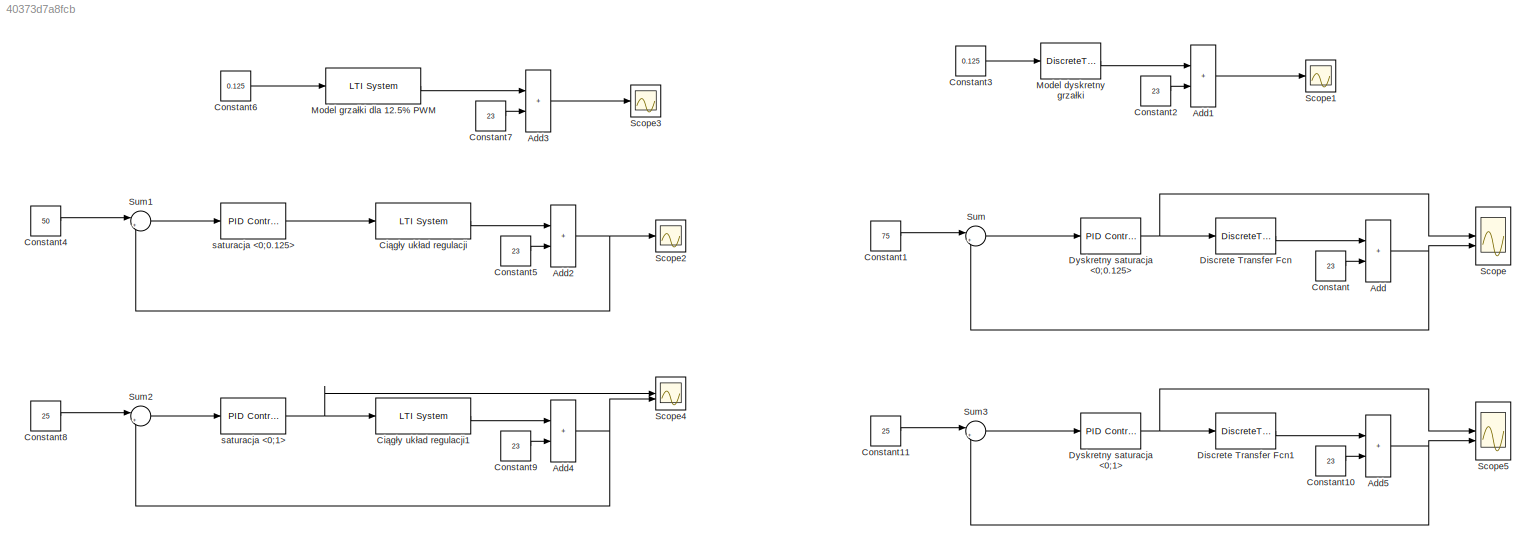
MODEL slx_40373d7a8fcb
KIND model
CONFIG AbsTol = auto
CONFIG EnableMultiTasking = off
CONFIG FixedStep = auto
CONFIG MaxStep = auto
CONFIG MinStep = auto
CONFIG RelTol = 1e-3
CONFIG SampleTimeConstraint = Unconstrained
CONFIG SolverName = VariableStepAuto
CONFIG StartTime = 0.0
CONFIG StopTime = 1300.0
BLOCK [Sum] Add
  IconShape = rectangular
BLOCK [Sum] Add1
  IconShape = rectangular
BLOCK [Sum] Add2
  IconShape = rectangular
BLOCK [Sum] Add3
  IconShape = rectangular
BLOCK [Sum] Add4
  IconShape = rectangular
BLOCK [Sum] Add5
  IconShape = rectangular
BLOCK [Reference] Ciągły układ regulacji  REF=cstblocks/LTI System
  SourceBlock = cstblocks/LTI System
  SourceType = LTI Block
BLOCK [Reference] Ciągły układ regulacji1  REF=cstblocks/LTI System
  SourceBlock = cstblocks/LTI System
  SourceType = LTI Block
BLOCK [Constant] Constant
  Value = 23
BLOCK [Constant] Constant1
  SampleTime = 0.5
  Value = 75
BLOCK [Constant] Constant10
  Value = 23
BLOCK [Constant] Constant11
  SampleTime = 0.5
  Value = 25
BLOCK [Constant] Constant2
  Value = 23
BLOCK [Constant] Constant3
  SampleTime = 0.5
  Value = 0.125
BLOCK [Constant] Constant4
  Value = 50
BLOCK [Constant] Constant5
  Value = 23
BLOCK [Constant] Constant6
  Value = 0.125
BLOCK [Constant] Constant7
  Value = 23
BLOCK [Constant] Constant8
  Value = 25
BLOCK [Constant] Constant9
  Value = 23
BLOCK [DiscreteTransferFcn] Discrete Transfer Fcn
  Denominator = [1,-0.997063142437592]
  InputPortMap = u0
  Numerator = [0.822320117474302,0.822320117474302]
BLOCK [DiscreteTransferFcn] Discrete Transfer Fcn1
  Denominator = [1,-0.997063142437592]
  InputPortMap = u0
  Numerator = [0.822320117474302,0.822320117474302]
BLOCK [Reference] Dyskretny saturacja <0;0.125>  REF=slpidlib/PID Controller
  LibrarySourceBlock = hdlsllib/Discrete/Discrete PID Controller
  SourceBlock = slpidlib/PID Controller
  SourceType = PID 1dof
BLOCK [Reference] Dyskretny saturacja <0;1>  REF=slpidlib/PID Controller
  LibrarySourceBlock = hdlsllib/Discrete/Discrete PID Controller
  SourceBlock = slpidlib/PID Controller
  SourceType = PID 1dof
BLOCK [DiscreteTransferFcn] Model dyskretny grzałki
  Denominator = [1,-0.997063142437592]
  InputPortMap = u0
  Numerator = [0.822320117474302,0.822320117474302]
BLOCK [Reference] Model grzałki dla 12.5% PWM  REF=cstblocks/LTI System
  SourceBlock = cstblocks/LTI System
  SourceType = LTI Block
BLOCK [Scope] Scope
  Floating = off
  NumInputPorts = 2
  ScopeSpecificationString = Simulink.scopes.TimeScopeBlockCfg('CurrentConfiguration', extmgr.ConfigurationSet(extmgr.Configuration('Core','General UI',true),extmgr.Configuration('Core','Source UI',true),extmgr.Configuration('Sources','WiredSimulink',true),extmgr.Configuration('Visuals','Time Domain',true,'SerializedDisplays',{struct('MinYLimReal','-11.34564','MaxYLimReal','102.27616','YLabelReal','','MinYLimMag','0.00000','M...<+1446ch>
BLOCK [Scope] Scope1
  Floating = off
  NumInputPorts = 1
  ScopeSpecificationString = Simulink.scopes.TimeScopeBlockCfg('CurrentConfiguration', extmgr.ConfigurationSet(extmgr.Configuration('Core','General UI',true),extmgr.Configuration('Core','Source UI',true),extmgr.Configuration('Sources','WiredSimulink',true,'DataLoggingVariableName','ScopeData1'),extmgr.Configuration('Visuals','Time Domain',true,'SerializedDisplays',{struct('MinYLimReal','14.36981','MaxYLimReal','101.69961','YL...<+1446ch>
BLOCK [Scope] Scope2
  Floating = off
  NumInputPorts = 1
  ScopeSpecificationString = Simulink.scopes.TimeScopeBlockCfg('CurrentConfiguration', extmgr.ConfigurationSet(extmgr.Configuration('Core','General UI',true),extmgr.Configuration('Core','Source UI',true),extmgr.Configuration('Sources','WiredSimulink',true,'DataLoggingVariableName','ScopeData1'),extmgr.Configuration('Visuals','Time Domain',true,'SerializedDisplays',{struct('MinYLimReal','18.18664','MaxYLimReal','66.32022','YLa...<+1402ch>
BLOCK [Scope] Scope3
  Floating = off
  NumInputPorts = 1
  ScopeSpecificationString = Simulink.scopes.TimeScopeBlockCfg('CurrentConfiguration', extmgr.ConfigurationSet(extmgr.Configuration('Core','General UI',true),extmgr.Configuration('Core','Source UI',true),extmgr.Configuration('Sources','WiredSimulink',true,'DataLoggingVariableName','ScopeData2'),extmgr.Configuration('Visuals','Time Domain',true,'SerializedDisplays',{struct('MinYLimReal','14.2543','MaxYLimReal','101.71128','YLa...<+1369ch>
BLOCK [Scope] Scope4
  Floating = off
  NumInputPorts = 2
  ScopeSpecificationString = Simulink.scopes.TimeScopeBlockCfg('CurrentConfiguration', extmgr.ConfigurationSet(extmgr.Configuration('Core','General UI',true),extmgr.Configuration('Core','Source UI',true),extmgr.Configuration('Sources','WiredSimulink',true,'DataLoggingVariableName','ScopeData3'),extmgr.Configuration('Visuals','Time Domain',true,'SerializedDisplays',{struct('MinYLimReal','-3.14317','MaxYLimReal','28.32009','YLa...<+1416ch>
BLOCK [Scope] Scope5
  Floating = off
  NumInputPorts = 2
  ScopeSpecificationString = Simulink.scopes.TimeScopeBlockCfg('CurrentConfiguration', extmgr.ConfigurationSet(extmgr.Configuration('Core','General UI',true),extmgr.Configuration('Core','Source UI',true),extmgr.Configuration('Sources','WiredSimulink',true,'DataLoggingVariableName','ScopeData4'),extmgr.Configuration('Visuals','Time Domain',true,'SerializedDisplays',{struct('MinYLimReal','-0.99295','MaxYLimReal','1.73474','YLab...<+1464ch>
BLOCK [Sum] Sum
  Inputs = |+-
BLOCK [Sum] Sum1
  Inputs = |+-
BLOCK [Sum] Sum2
  Inputs = |+-
BLOCK [Sum] Sum3
  Inputs = |+-
BLOCK [Reference] saturacja <0;0.125>  REF=slpidlib/PID Controller
  LibrarySourceBlock = simulink/Continuous/PID Controller
  SourceBlock = slpidlib/PID Controller
  SourceType = PID 1dof
BLOCK [Reference] saturacja <0;1>  REF=slpidlib/PID Controller
  LibrarySourceBlock = simulink/Continuous/PID Controller
  SourceBlock = slpidlib/PID Controller
  SourceType = PID 1dof
LINE Add1:1 -> Scope1:1
NET Add2:1 -> Scope2:1, Sum1:2
LINE Add3:1 -> Scope3:1
NET Add4:1 -> Scope4:2, Sum2:2
NET Add5:1 -> Scope5:2, Sum3:2
NET Add:1 -> Scope:2, Sum:2
LINE Ciągły układ regulacji1:1 -> Add4:1
LINE Ciągły układ regulacji:1 -> Add2:1
LINE Constant10:1 -> Add5:2
LINE Constant11:1 -> Sum3:1
LINE Constant1:1 -> Sum:1
LINE Constant2:1 -> Add1:2
LINE Constant3:1 -> Model dyskretny grzałki:1
LINE Constant4:1 -> Sum1:1
LINE Constant5:1 -> Add2:2
LINE Constant6:1 -> Model grzałki dla 12.5% PWM:1
LINE Constant7:1 -> Add3:2
LINE Constant8:1 -> Sum2:1
LINE Constant9:1 -> Add4:2
LINE Constant:1 -> Add:2
LINE Discrete Transfer Fcn1:1 -> Add5:1
LINE Discrete Transfer Fcn:1 -> Add:1
NET Dyskretny saturacja <0;0.125>:1 -> Discrete Transfer Fcn:1, Scope:1
NET Dyskretny saturacja <0;1>:1 -> Discrete Transfer Fcn1:1, Scope5:1
LINE Model dyskretny grzałki:1 -> Add1:1
LINE Model grzałki dla 12.5% PWM:1 -> Add3:1
LINE Sum1:1 -> saturacja <0;0.125>:1
LINE Sum2:1 -> saturacja <0;1>:1
LINE Sum3:1 -> Dyskretny saturacja <0;1>:1
LINE Sum:1 -> Dyskretny saturacja <0;0.125>:1
LINE saturacja <0;0.125>:1 -> Ciągły układ regulacji:1
NET saturacja <0;1>:1 -> Ciągły układ regulacji1:1, Scope4:1
note: NET lines group one-source signal fan-out (src -> all destinations, sorted); 1:1 wires keep LINE
